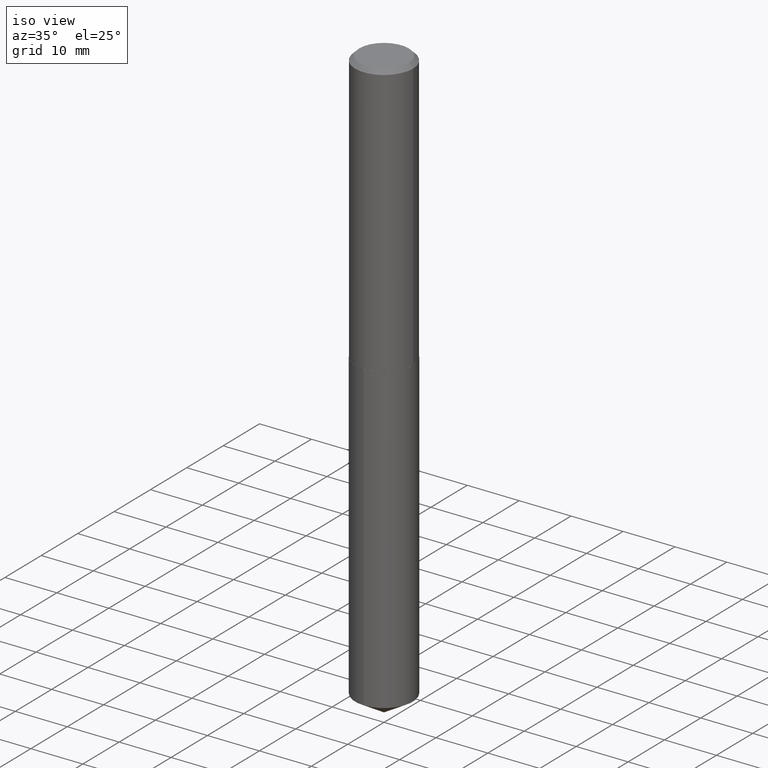
[diagram: clean part render]
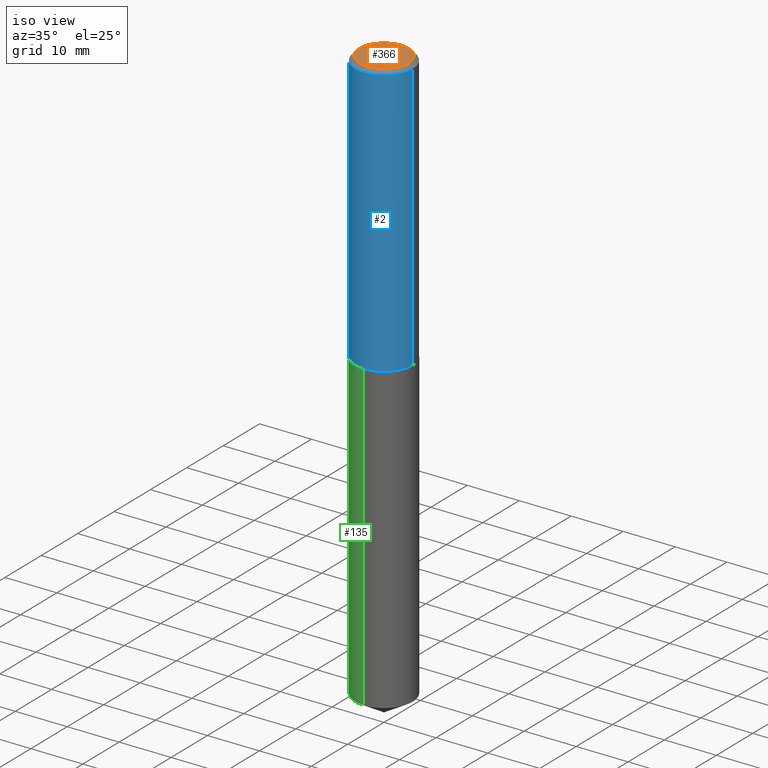
[diagram: same view with three faces highlighted in distinct colors, each labeled with its STEP entity id]
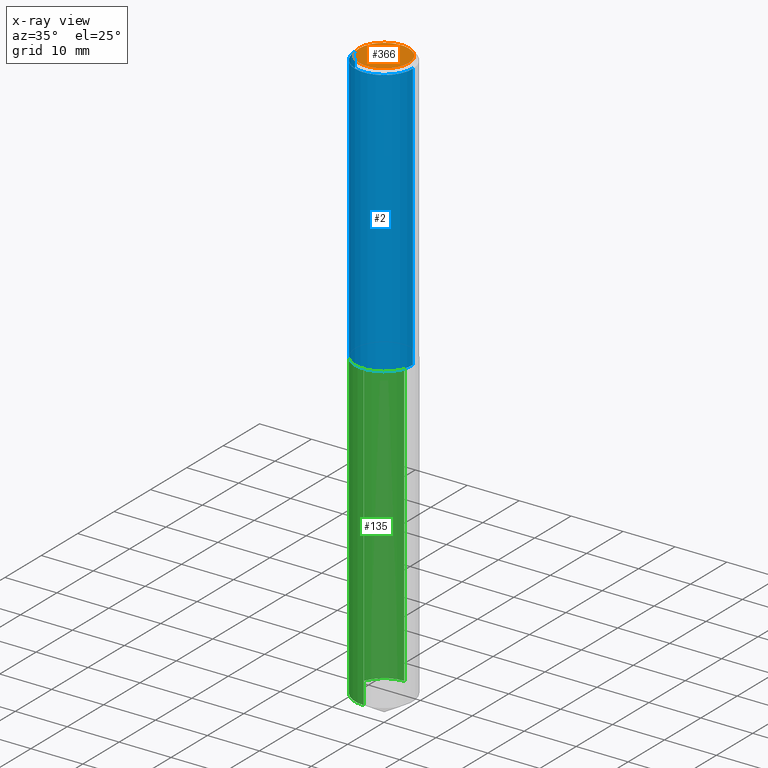
[diagram: x-ray of the same camera — body ghosted, the three highlighted faces saturated]
A machine part, iso view with three faces highlighted in distinct colors.
The next image is the same camera in x-ray (body ghosted, the three faces saturated) — at least one of them is partly hidden behind the body in this view.
Their STEP definitions:

[orange] entity #366 — the highlighted planar face has unit normal (0, -0, -1).
#10 = DIRECTION ( 'NONE',  ( -1.000000000000000000, 6.982962677686265922E-15, -4.876176775795935793E-29 ) ) ;
#14 = FACE_OUTER_BOUND ( 'NONE', #114, .T. ) ;
#68 = DIRECTION ( 'NONE',  ( -2.445468806185136597E-29, 3.491481338843145583E-15, 1.000000000000000000 ) ) ;
#72 = DIRECTION ( 'NONE',  ( 1.000000000000000000, -6.982962677686266711E-15, 4.876179125272552877E-29 ) ) ;
#108 = DIRECTION ( 'NONE',  ( 2.438088387897960049E-29, -3.491481338843145188E-15, -1.000000000000000000 ) ) ;
#114 = EDGE_LOOP ( 'NONE', ( #309, #123 ) ) ;
#123 = ORIENTED_EDGE ( 'NONE', *, *, #332, .T. ) ;
#138 = PLANE ( 'NONE',  #298 ) ;
#148 = VERTEX_POINT ( 'NONE', #365 ) ;
#161 = CARTESIAN_POINT ( 'NONE',  ( -1.167985862904636054E-47, 1.667574263899817862E-33, 4.776122516674672132E-19 ) ) ;
#165 = CARTESIAN_POINT ( 'NONE',  ( -2.335971725809272108E-47, 3.335148527799635725E-33, 9.552245033349344265E-19 ) ) ;
#189 = CARTESIAN_POINT ( 'NONE',  ( 0.1874999999999999722, -1.448093051716766899E-15, 9.552245033445756318E-19 ) ) ;
#202 = AXIS2_PLACEMENT_3D ( 'NONE', #165, #316, #72 ) ;
#252 = AXIS2_PLACEMENT_3D ( 'NONE', #255, #68, #342 ) ;
#255 = CARTESIAN_POINT ( 'NONE',  ( -2.335971725809272108E-47, 3.335148527799635725E-33, 9.552245033349344265E-19 ) ) ;
#267 = CIRCLE ( 'NONE', #252, 0.1874999999999999722 ) ;
#294 = VERTEX_POINT ( 'NONE', #189 ) ;
#298 = AXIS2_PLACEMENT_3D ( 'NONE', #161, #108, #10 ) ;
#309 = ORIENTED_EDGE ( 'NONE', *, *, #343, .T. ) ;
#316 = DIRECTION ( 'NONE',  ( -2.445468806185136597E-29, 3.491481338843145583E-15, 1.000000000000000000 ) ) ;
#332 = EDGE_CURVE ( 'NONE', #294, #148, #388, .T. ) ;
#342 = DIRECTION ( 'NONE',  ( 1.000000000000000000, -6.982962677686266711E-15, 4.876179125272552877E-29 ) ) ;
#343 = EDGE_CURVE ( 'NONE', #148, #294, #267, .T. ) ;
#365 = CARTESIAN_POINT ( 'NONE',  ( -0.1874999999999999722, 1.363859897985598178E-15, 9.552245033255873107E-19 ) ) ;
#366 = ADVANCED_FACE ( 'NONE', ( #14 ), #138, .F. ) ;
#388 = CIRCLE ( 'NONE', #202, 0.1874999999999999722 ) ;

[blue] entity #2 — the highlighted cylindrical surface (edge-blend (fillet) strip) has radius 5.5563 mm, axis along (-0, 0, 1).
#2 = ADVANCED_FACE ( 'NONE', ( #362 ), #266, .T. ) ;
#4 = EDGE_CURVE ( 'NONE', #21, #66, #49, .T. ) ;
#17 = DIRECTION ( 'NONE',  ( 1.000000000000000000, -6.982962677686266711E-15, 4.876176775795935793E-29 ) ) ;
#21 = VERTEX_POINT ( 'NONE', #141 ) ;
#24 = DIRECTION ( 'NONE',  ( -2.445468806185136877E-29, 3.491481338843145188E-15, 1.000000000000000000 ) ) ;
#49 = LINE ( 'NONE', #79, #234 ) ;
#50 = EDGE_CURVE ( 'NONE', #213, #293, #352, .T. ) ;
#57 = DIRECTION ( 'NONE',  ( -2.445468806185136597E-29, 3.491481338843145583E-15, 1.000000000000000000 ) ) ;
#66 = VERTEX_POINT ( 'NONE', #91 ) ;
#79 = CARTESIAN_POINT ( 'NONE',  ( 0.2187500000000000833, -1.527523085743871435E-15, 1.066663669705361305E-29 ) ) ;
#84 = DIRECTION ( 'NONE',  ( -2.445468806185136877E-29, 3.491481338843145188E-15, 1.000000000000000000 ) ) ;
#91 = CARTESIAN_POINT ( 'NONE',  ( 0.2187500000000000000, -1.636631877582719746E-15, -0.03125000000000019429 ) ) ;
#99 = EDGE_CURVE ( 'NONE', #293, #66, #228, .T. ) ;
#121 = CARTESIAN_POINT ( 'NONE',  ( 0.000000000000000000, 0.000000000000000000, 0.000000000000000000 ) ) ;
#127 = DIRECTION ( 'NONE',  ( 1.000000000000000000, -6.982962677686266711E-15, 0.000000000000000000 ) ) ;
#141 = CARTESIAN_POINT ( 'NONE',  ( 0.2187500000000002220, -8.726957606438439495E-15, -2.062000000000000277 ) ) ;
#143 = ORIENTED_EDGE ( 'NONE', *, *, #144, .T. ) ;
#144 = EDGE_CURVE ( 'NONE', #213, #21, #325, .T. ) ;
#157 = AXIS2_PLACEMENT_3D ( 'NONE', #369, #279, #214 ) ;
#168 = ORIENTED_EDGE ( 'NONE', *, *, #4, .T. ) ;
#195 = AXIS2_PLACEMENT_3D ( 'NONE', #121, #57, #17 ) ;
#200 = ORIENTED_EDGE ( 'NONE', *, *, #99, .F. ) ;
#213 = VERTEX_POINT ( 'NONE', #217 ) ;
#214 = DIRECTION ( 'NONE',  ( 1.000000000000000000, -6.982962677686265133E-15, 0.000000000000000000 ) ) ;
#217 = CARTESIAN_POINT ( 'NONE',  ( -0.2187500000000002220, -5.645122286219346340E-15, -2.062000000000000277 ) ) ;
#219 = DIRECTION ( 'NONE',  ( -2.445468806185136597E-29, 3.491481338843145583E-15, 1.000000000000000000 ) ) ;
#222 = ORIENTED_EDGE ( 'NONE', *, *, #50, .F. ) ;
#228 = CIRCLE ( 'NONE', #296, 0.2187500000000000000 ) ;
#234 = VECTOR ( 'NONE', #24, 39.37007874015748143 ) ;
#243 = CARTESIAN_POINT ( 'NONE',  ( 7.642090019328599159E-31, -1.091087918388489774E-16, -0.03125000000000019429 ) ) ;
#249 = EDGE_LOOP ( 'NONE', ( #222, #143, #168, #200 ) ) ;
#258 = CARTESIAN_POINT ( 'NONE',  ( -0.2187500000000000000, -2.099959421791488142E-15, -0.03125000000000019429 ) ) ;
#266 = CYLINDRICAL_SURFACE ( 'NONE', #195, 0.2187500000000000833 ) ;
#279 = DIRECTION ( 'NONE',  ( -2.445468806185136597E-29, 3.491481338843145583E-15, 1.000000000000000000 ) ) ;
#293 = VERTEX_POINT ( 'NONE', #258 ) ;
#296 = AXIS2_PLACEMENT_3D ( 'NONE', #243, #219, #127 ) ;
#322 = CARTESIAN_POINT ( 'NONE',  ( -0.2187500000000000833, 1.554312234475219748E-15, -1.076017050993261043E-29 ) ) ;
#325 = CIRCLE ( 'NONE', #157, 0.2187500000000002220 ) ;
#327 = VECTOR ( 'NONE', #84, 39.37007874015748143 ) ;
#352 = LINE ( 'NONE', #322, #327 ) ;
#362 = FACE_OUTER_BOUND ( 'NONE', #249, .T. ) ;
#369 = CARTESIAN_POINT ( 'NONE',  ( 5.042556678353752550E-29, -7.199434520694567863E-15, -2.062000000000000277 ) ) ;

[green] entity #135 — the highlighted cylindrical surface (edge-blend (fillet) strip) has radius 5.5562 mm, axis along (-0, 0, 1).
#36 = ORIENTED_EDGE ( 'NONE', *, *, #192, .F. ) ;
#41 = VERTEX_POINT ( 'NONE', #236 ) ;
#43 = LINE ( 'NONE', #136, #346 ) ;
#67 = ORIENTED_EDGE ( 'NONE', *, *, #354, .T. ) ;
#90 = CIRCLE ( 'NONE', #106, 0.2187500000000000000 ) ;
#94 = CARTESIAN_POINT ( 'NONE',  ( -1.527523085743763952E-15, -0.2187500000000152656, -4.368561739587721426 ) ) ;
#100 = CARTESIAN_POINT ( 'NONE',  ( -1.527523085743819961E-15, -0.2187500000000071887, -2.062499999999999556 ) ) ;
#103 = CARTESIAN_POINT ( 'NONE',  ( 5.043779412756844791E-29, -7.201180261363988578E-15, -2.062500000000000000 ) ) ;
#106 = AXIS2_PLACEMENT_3D ( 'NONE', #103, #224, #167 ) ;
#109 = VERTEX_POINT ( 'NONE', #94 ) ;
#125 = DIRECTION ( 'NONE',  ( -2.445407909146511426E-29, 3.491568546868500989E-15, 1.000000000000000000 ) ) ;
#131 = CARTESIAN_POINT ( 'NONE',  ( 1.554312234475269249E-15, 0.2187499999999927836, -2.062500000000000888 ) ) ;
#134 = CARTESIAN_POINT ( 'NONE',  ( 1.554312234475325850E-15, 0.2187499999999847622, -4.368561739587722315 ) ) ;
#135 = ADVANCED_FACE ( 'NONE', ( #276 ), #244, .T. ) ;
#136 = CARTESIAN_POINT ( 'NONE',  ( -1.527523085743819961E-15, -0.2187500000000071887, -2.062499999999999556 ) ) ;
#139 = AXIS2_PLACEMENT_3D ( 'NONE', #349, #256, #229 ) ;
#167 = DIRECTION ( 'NONE',  ( -6.982962677686265133E-15, -1.000000000000000000, 3.746534391310989557E-15 ) ) ;
#177 = VECTOR ( 'NONE', #367, 39.37007874015748143 ) ;
#182 = ORIENTED_EDGE ( 'NONE', *, *, #360, .F. ) ;
#192 = EDGE_CURVE ( 'NONE', #299, #41, #245, .T. ) ;
#196 = DIRECTION ( 'NONE',  ( -2.445407909146511426E-29, 3.491568546868500989E-15, 1.000000000000000000 ) ) ;
#224 = DIRECTION ( 'NONE',  ( -2.445407909146511426E-29, 3.491568546868500989E-15, 1.000000000000000000 ) ) ;
#229 = DIRECTION ( 'NONE',  ( -6.982962677686265133E-15, -1.000000000000000000, 2.497689594207326371E-15 ) ) ;
#236 = CARTESIAN_POINT ( 'NONE',  ( 1.554312234475326047E-15, 0.2187499999999927836, -2.062500000000000888 ) ) ;
#244 = CYLINDRICAL_SURFACE ( 'NONE', #381, 0.2187500000000000000 ) ;
#245 = LINE ( 'NONE', #131, #177 ) ;
#256 = DIRECTION ( 'NONE',  ( -2.445407909146511426E-29, 3.491568546868500989E-15, 1.000000000000000000 ) ) ;
#262 = ORIENTED_EDGE ( 'NONE', *, *, #281, .T. ) ;
#276 = FACE_OUTER_BOUND ( 'NONE', #380, .T. ) ;
#277 = DIRECTION ( 'NONE',  ( -6.982962677686265133E-15, -1.000000000000000000, 3.746534391310989557E-15 ) ) ;
#281 = EDGE_CURVE ( 'NONE', #299, #109, #307, .T. ) ;
#299 = VERTEX_POINT ( 'NONE', #134 ) ;
#307 = CIRCLE ( 'NONE', #139, 0.2187500000000000000 ) ;
#331 = CARTESIAN_POINT ( 'NONE',  ( 5.043779412756844791E-29, -7.201180261363988578E-15, -2.062500000000000000 ) ) ;
#344 = VERTEX_POINT ( 'NONE', #100 ) ;
#346 = VECTOR ( 'NONE', #196, 39.37007874015748143 ) ;
#349 = CARTESIAN_POINT ( 'NONE',  ( 1.068304102972482118E-28, -1.525295289844533477E-14, -4.368561739587721426 ) ) ;
#354 = EDGE_CURVE ( 'NONE', #109, #344, #43, .T. ) ;
#360 = EDGE_CURVE ( 'NONE', #41, #344, #90, .T. ) ;
#367 = DIRECTION ( 'NONE',  ( -2.445407909146511426E-29, 3.491568546868500989E-15, 1.000000000000000000 ) ) ;
#380 = EDGE_LOOP ( 'NONE', ( #36, #262, #67, #182 ) ) ;
#381 = AXIS2_PLACEMENT_3D ( 'NONE', #331, #125, #277 ) ;